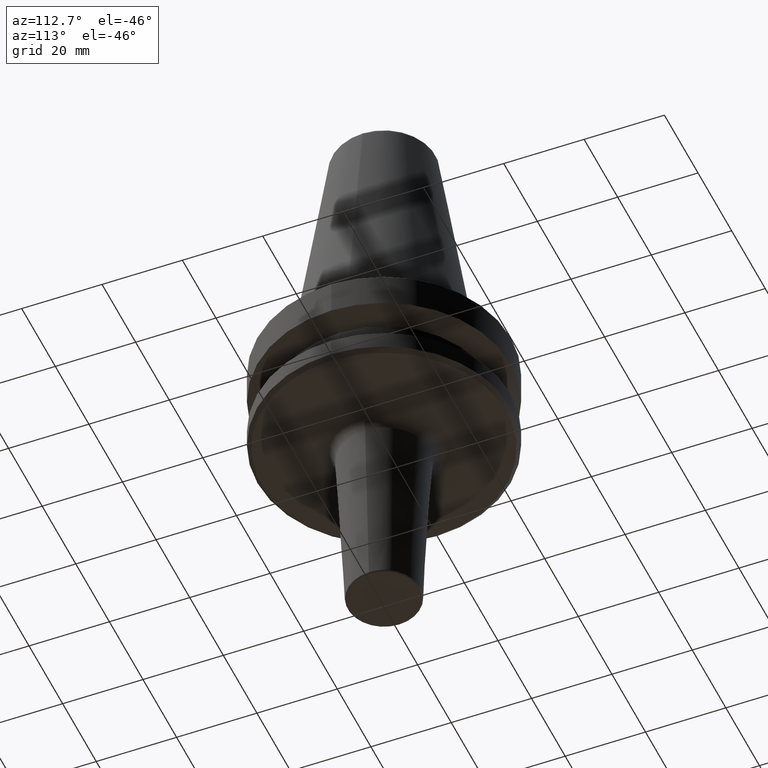
[diagram: clean part render]
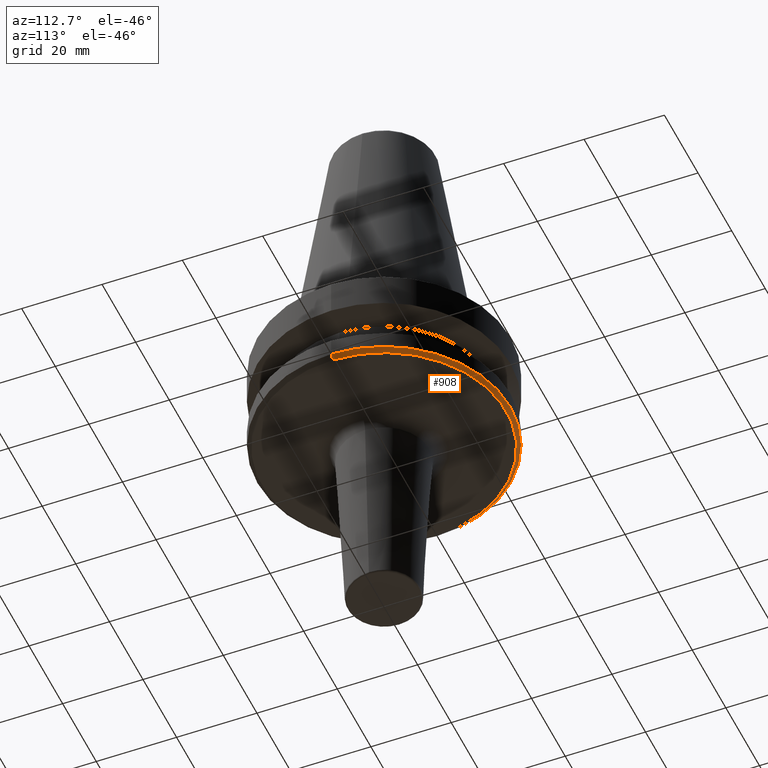
[diagram: same view with one face highlighted and labeled with its STEP entity id]
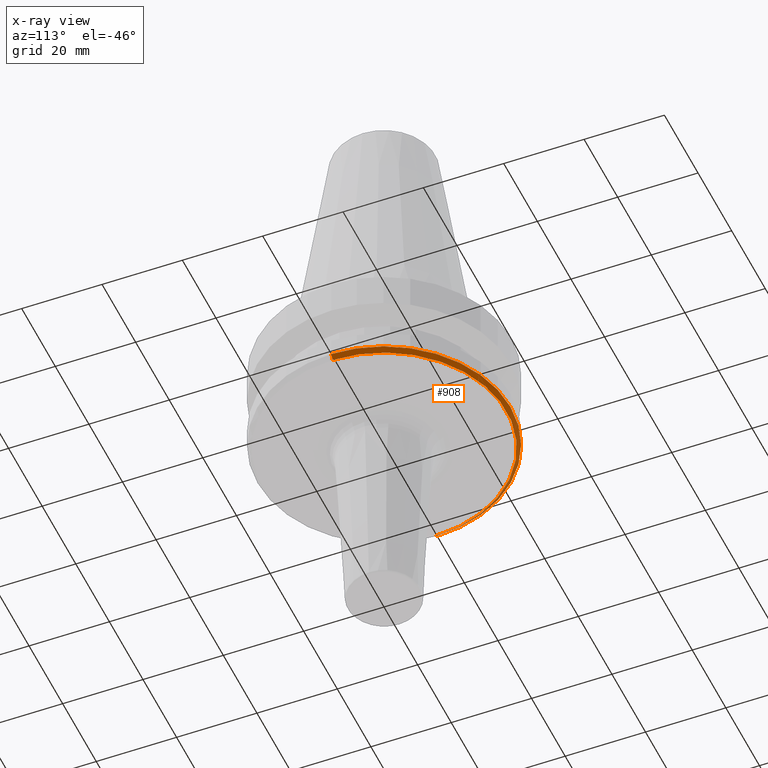
[diagram: x-ray of the same camera — body ghosted, the highlighted face saturated]
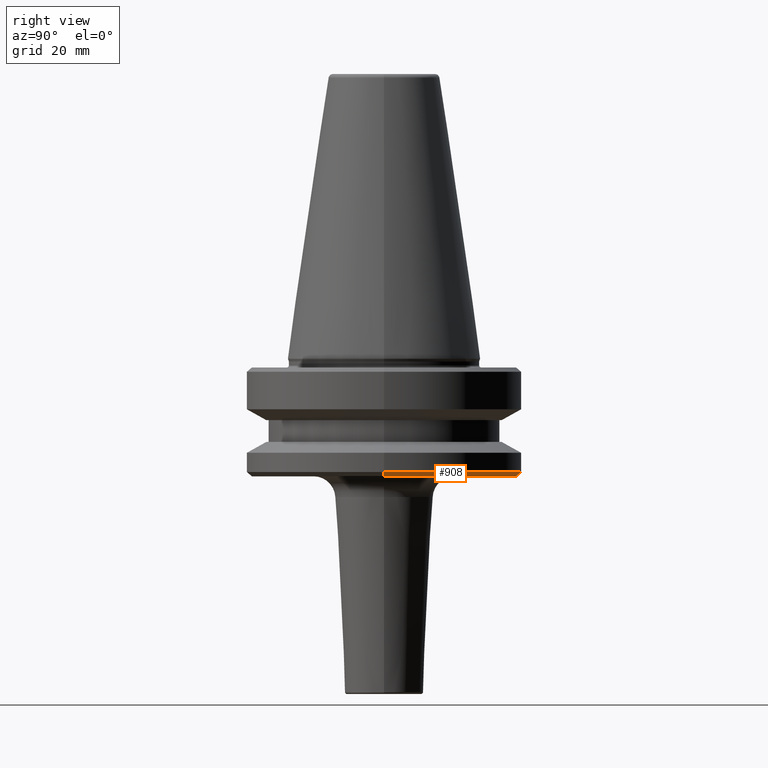
[diagram: same view with one face highlighted and labeled with its STEP entity id]
A machine part, auxiliary view. The second image highlights one B-rep face of the part: STEP entity #908.
The next image is the same camera in x-ray: the body ghosted, the highlighted face saturated — about 0% of this face is hidden behind the body in this view.
A second angle (right view) of the same face is appended — the face is thin or edge-on in the first view.
In plain terms, the highlighted conical surface has half-angle 45 deg.
Its self-contained STEP definition (entity closure, byte-faithful):
#19 = LINE ( 'NONE', #525, #909 ) ;
#97 = ORIENTED_EDGE ( 'NONE', *, *, #529, .T. ) ;
#112 = EDGE_CURVE ( 'NONE', #797, #725, #888, .T. ) ;
#128 = EDGE_LOOP ( 'NONE', ( #955, #97, #196, #705 ) ) ;
#161 = CIRCLE ( 'NONE', #690, 31.50000000000008500 ) ;
#166 = DIRECTION ( 'NONE',  ( -0.0000000000000000000, -0.0000000000000000000, 1.000000000000000000 ) ) ;
#196 = ORIENTED_EDGE ( 'NONE', *, *, #890, .F. ) ;
#202 = DIRECTION ( 'NONE',  ( 1.000000000000000000, 0.0000000000000000000, 0.0000000000000000000 ) ) ;
#237 = CARTESIAN_POINT ( 'NONE',  ( 31.50000000000008500, 0.0000000000000000000, -91.40000000000037500 ) ) ;
#238 = DIRECTION ( 'NONE',  ( 0.7071067811865487900, 0.0000000000000000000, 0.7071067811865463500 ) ) ;
#277 = CARTESIAN_POINT ( 'NONE',  ( 30.49999999999241900, 0.0000000000000000000, -92.40000000000803500 ) ) ;
#324 = CIRCLE ( 'NONE', #701, 30.49999999999241900 ) ;
#331 = CARTESIAN_POINT ( 'NONE',  ( 0.0000000000000000000, 0.0000000000000000000, -91.40000000000037500 ) ) ;
#335 = CARTESIAN_POINT ( 'NONE',  ( 0.0000000000000000000, 0.0000000000000000000, -91.40000000000037500 ) ) ;
#341 = CARTESIAN_POINT ( 'NONE',  ( -31.50000000000008500, 3.857637417314172900E-015, -91.40000000000037500 ) ) ;
#416 = DIRECTION ( 'NONE',  ( 1.000000000000000000, 0.0000000000000000000, 0.0000000000000000000 ) ) ;
#436 = EDGE_CURVE ( 'NONE', #797, #625, #324, .T. ) ;
#459 = VECTOR ( 'NONE', #238, 1000.000000000000000 ) ;
#470 = VERTEX_POINT ( 'NONE', #341 ) ;
#481 = CARTESIAN_POINT ( 'NONE',  ( 31.50000000000008500, 0.0000000000000000000, -91.40000000000037500 ) ) ;
#488 = DIRECTION ( 'NONE',  ( -0.7071067811865487900, 8.659560562354948900E-017, 0.7071067811865463500 ) ) ;
#490 = DIRECTION ( 'NONE',  ( 1.000000000000000000, 0.0000000000000000000, 0.0000000000000000000 ) ) ;
#507 = CONICAL_SURFACE ( 'NONE', #790, 31.50000000000008500, 0.7853981633974500600 ) ;
#525 = CARTESIAN_POINT ( 'NONE',  ( -31.50000000000008500, 3.857637417314172900E-015, -91.40000000000037500 ) ) ;
#529 = EDGE_CURVE ( 'NONE', #625, #470, #19, .T. ) ;
#625 = VERTEX_POINT ( 'NONE', #746 ) ;
#690 = AXIS2_PLACEMENT_3D ( 'NONE', #335, #977, #490 ) ;
#701 = AXIS2_PLACEMENT_3D ( 'NONE', #754, #745, #202 ) ;
#705 = ORIENTED_EDGE ( 'NONE', *, *, #112, .F. ) ;
#725 = VERTEX_POINT ( 'NONE', #481 ) ;
#739 = FACE_OUTER_BOUND ( 'NONE', #128, .T. ) ;
#745 = DIRECTION ( 'NONE',  ( -0.0000000000000000000, -0.0000000000000000000, 1.000000000000000000 ) ) ;
#746 = CARTESIAN_POINT ( 'NONE',  ( -30.49999999999241900, 3.796405077356336000E-015, -92.40000000000803500 ) ) ;
#754 = CARTESIAN_POINT ( 'NONE',  ( 0.0000000000000000000, 0.0000000000000000000, -92.40000000000803500 ) ) ;
#790 = AXIS2_PLACEMENT_3D ( 'NONE', #331, #166, #416 ) ;
#797 = VERTEX_POINT ( 'NONE', #277 ) ;
#888 = LINE ( 'NONE', #237, #459 ) ;
#890 = EDGE_CURVE ( 'NONE', #725, #470, #161, .T. ) ;
#908 = ADVANCED_FACE ( 'NONE', ( #739 ), #507, .T. ) ;
#909 = VECTOR ( 'NONE', #488, 1000.000000000000000 ) ;
#955 = ORIENTED_EDGE ( 'NONE', *, *, #436, .T. ) ;
#977 = DIRECTION ( 'NONE',  ( -0.0000000000000000000, -0.0000000000000000000, 1.000000000000000000 ) ) ;